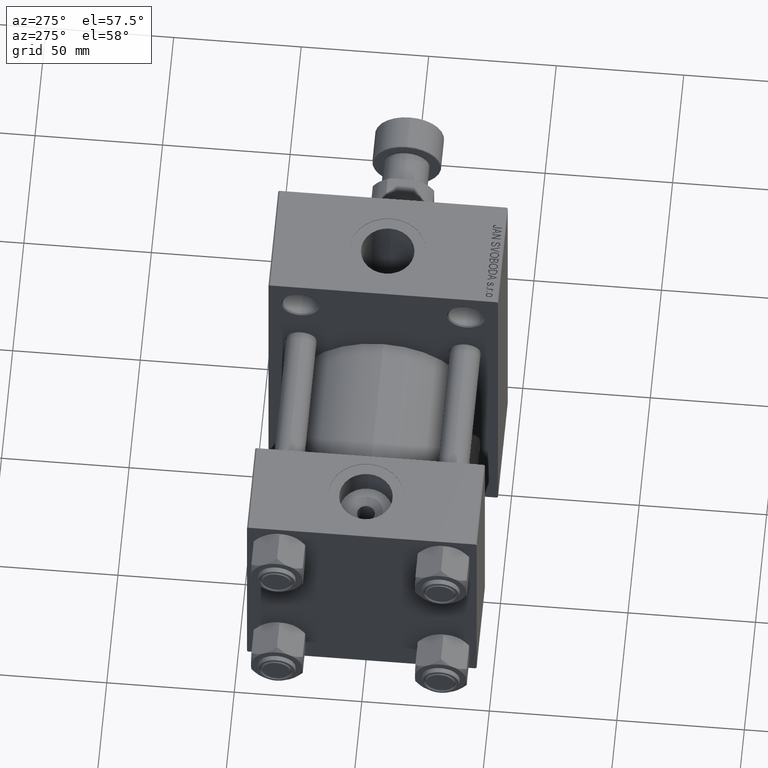
[diagram: clean part render]
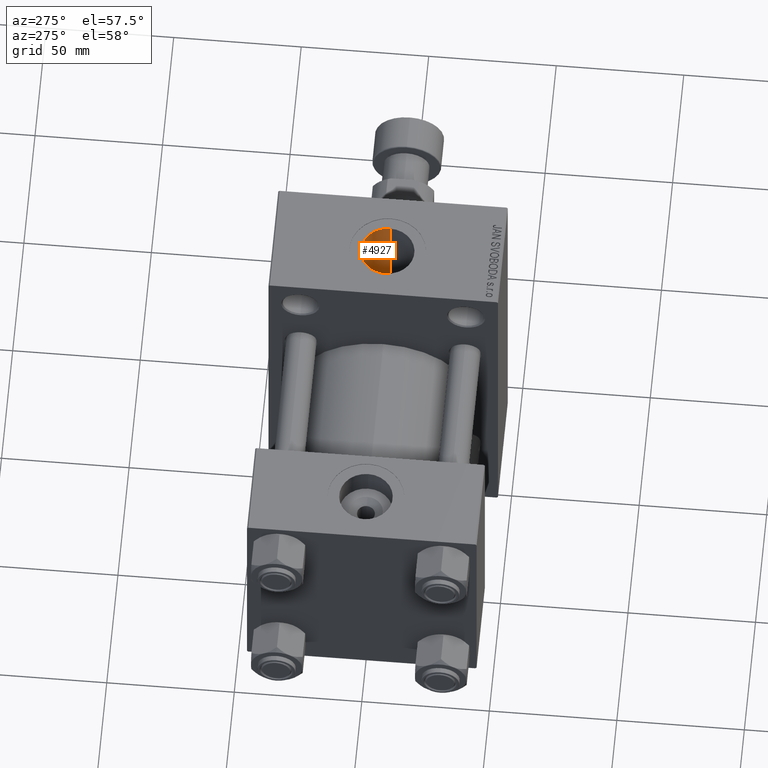
[diagram: same view with one face highlighted and labeled with its STEP entity id]
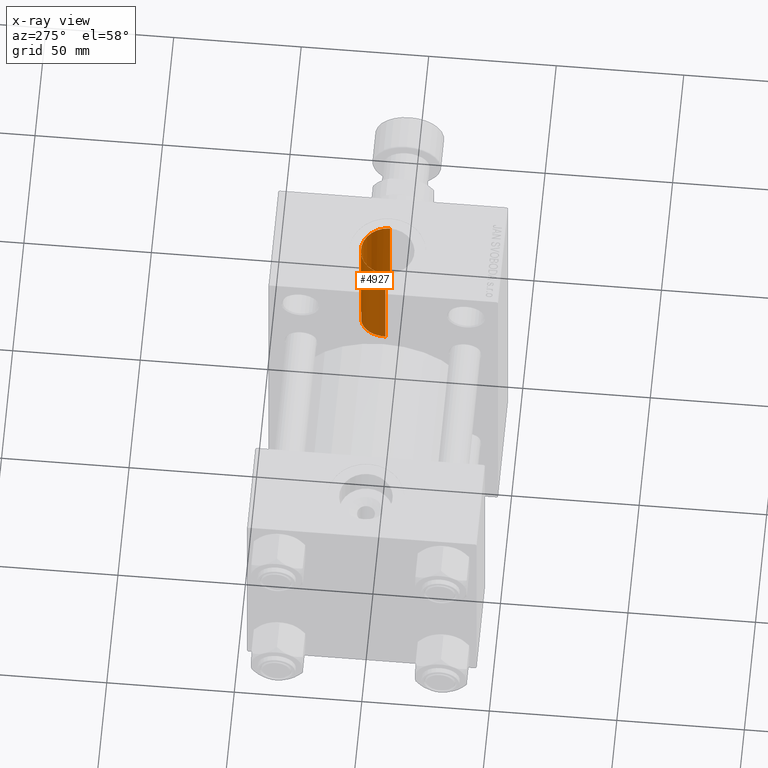
[diagram: x-ray of the same camera — body ghosted, the highlighted face saturated]
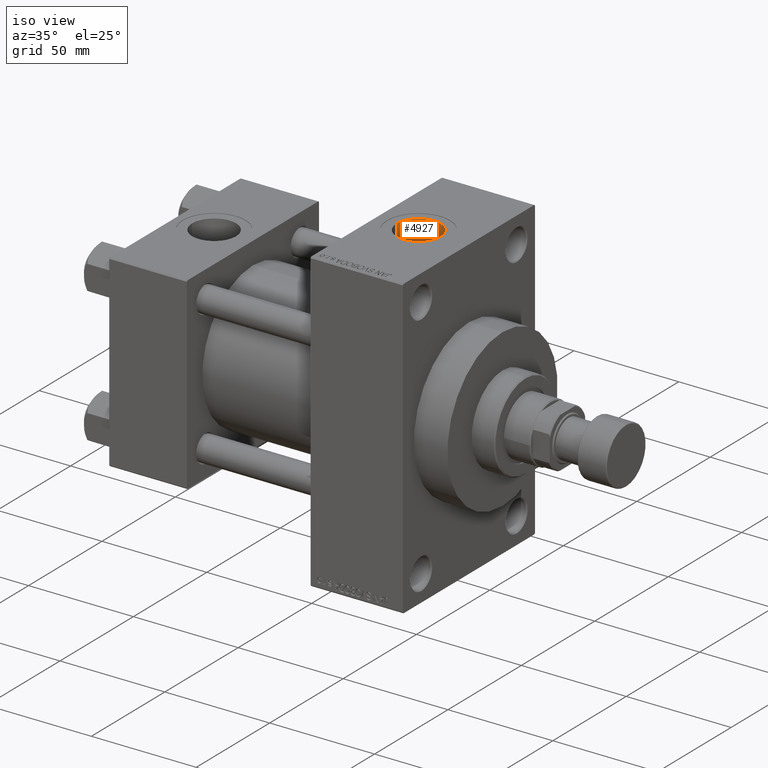
[diagram: same view with one face highlighted and labeled with its STEP entity id]
A machine part, auxiliary view. The second image highlights one B-rep face of the part: STEP entity #4927.
The next image is the same camera in x-ray: the body ghosted, the highlighted face saturated — about 2% of this face is hidden behind the body in this view.
A second angle (iso view) of the same face is appended — the face is thin or edge-on in the first view.
In plain terms, the highlighted cylindrical surface (edge-blend (fillet) strip) has radius 10.48 mm, axis along (0, 0, -1).
Its self-contained STEP definition (entity closure, byte-faithful):
#401 = VERTEX_POINT ( 'NONE', #13849 ) ;
#2910 = CARTESIAN_POINT ( 'NONE',  ( 126.3830360161806396, 1.648097371455658156, 29.96570276014226053 ) ) ;
#3214 = CARTESIAN_POINT ( 'NONE',  ( 108.2191150461718649, 7.025825097695104660, 23.99341311413245847 ) ) ;
#3386 = CARTESIAN_POINT ( 'NONE',  ( 123.4361280113390649, 7.429595108124756209, 29.07242469717888511 ) ) ;
#3452 = CARTESIAN_POINT ( 'NONE',  ( 112.7400000000000375, 9.960060240781688279, 22.93026820601974691 ) ) ;
#3691 = CARTESIAN_POINT ( 'NONE',  ( 105.7407124806769758, 2.210995156578869913, 24.90815361058044175 ) ) ;
#4798 = VERTEX_POINT ( 'NONE', #33761 ) ;
#4927 = ADVANCED_FACE ( 'NONE', ( #29111 ), #29355, .F. ) ;
#5331 = CARTESIAN_POINT ( 'NONE',  ( 120.7931686517055709, 9.355930520045832921, 28.50576369173083435 ) ) ;
#6048 = CARTESIAN_POINT ( 'NONE',  ( 114.3405906774045064, 10.38092379675461530, 28.14678245432905968 ) ) ;
#6932 = B_SPLINE_CURVE_WITH_KNOTS ( 'NONE', 3,
 ( #39085, #20043, #6048, #20756, #31847, #46552, #9915, #30887, #41985, #23650, #38374, #5331, #43180, #13988, #3386, #13755, #14709, #32329, #6998, #28465, #39790, #10155, #17856, #2910, #28694, #24835 ),
 .UNSPECIFIED., .F., .F.,
 ( 4, 2, 2, 2, 2, 2, 2, 2, 2, 2, 2, 2, 4 ),
 ( 0.000000000000000000, 0.002478973229448047568, 0.003718459844172071569, 0.004957946458896095136, 0.006197433073620119137, 0.007436919688344143138, 0.009915892917792155578, 0.01239486614724016715, 0.01363435276196417467, 0.01487383937668817872, 0.01611332599141218624, 0.01735281260613619203, 0.01983178583558418279 ),
 .UNSPECIFIED. ) ;
#6998 = CARTESIAN_POINT ( 'NONE',  ( 125.1456671303457568, 5.133639323080404715, 29.55979794353439516 ) ) ;
#8239 = CARTESIAN_POINT ( 'NONE',  ( 112.7400000000000375, 9.960060240781688279, 93.79999999999999716 ) ) ;
#8368 = DIRECTION ( 'NONE',  ( -0.000000000000000000, -0.000000000000000000, -1.000000000000000000 ) ) ;
#9692 = LINE ( 'NONE', #32101, #47670 ) ;
#9845 = VERTEX_POINT ( 'NONE', #37049 ) ;
#9915 = CARTESIAN_POINT ( 'NONE',  ( 117.2444743077375335, 10.41402026144618809, 28.13455134504983235 ) ) ;
#10155 = CARTESIAN_POINT ( 'NONE',  ( 125.9683417730961565, 3.260593319422036895, 29.82480881445976095 ) ) ;
#10215 = CARTESIAN_POINT ( 'NONE',  ( 105.6081712893590492, 1.384942614456412535, 24.96313457725881335 ) ) ;
#10235 = VECTOR ( 'NONE', #22942, 1000.000000000000000 ) ;
#10449 = CARTESIAN_POINT ( 'NONE',  ( 108.4055094269453150, 7.226927296489289887, 23.93349527817645495 ) ) ;
#11318 = LINE ( 'NONE', #44820, #40297 ) ;
#12640 = AXIS2_PLACEMENT_3D ( 'NONE', #26693, #8368, #30070 ) ;
#12768 = ORIENTED_EDGE ( 'NONE', *, *, #41077, .F. ) ;
#13151 = ORIENTED_EDGE ( 'NONE', *, *, #39755, .F. ) ;
#13755 = CARTESIAN_POINT ( 'NONE',  ( 124.2306735501210966, 6.500194899328791465, 29.28905352826703634 ) ) ;
#13849 = CARTESIAN_POINT ( 'NONE',  ( 126.4800000000000040, 1.283429845506425883E-15, 70.79999999999998295 ) ) ;
#13988 = CARTESIAN_POINT ( 'NONE',  ( 122.8380018292597526, 7.984464829307555078, 28.92238598225677393 ) ) ;
#14048 = CARTESIAN_POINT ( 'NONE',  ( 105.8714792709155859, 2.746840284963962375, 24.85421337676989495 ) ) ;
#14170 = DIRECTION ( 'NONE',  ( -1.000000000000000000, 0.000000000000000000, 0.000000000000000000 ) ) ;
#14297 = CARTESIAN_POINT ( 'NONE',  ( 112.2204695759653816, 9.790014162604540715, 23.00412993180228938 ) ) ;
#14533 = CARTESIAN_POINT ( 'NONE',  ( 105.5308991753443308, 0.5526879277622510633, 24.99542504668380971 ) ) ;
#14709 = CARTESIAN_POINT ( 'NONE',  ( 124.4793501314061501, 6.172613663302648490, 29.36019312204047793 ) ) ;
#15161 = B_SPLINE_CURVE_WITH_KNOTS ( 'NONE', 3,
 ( #47087, #36722, #14533, #43238, #10215, #3691, #14048, #18159, #18393, #39852, #36000, #33115, #32624, #43952, #43474, #3214, #10449, #21528, #17680, #21767, #47330, #36245, #14297, #3452 ),
 .UNSPECIFIED., .F., .F.,
 ( 4, 2, 2, 2, 2, 2, 2, 2, 2, 2, 2, 4 ),
 ( 0.03315293716445245897, 0.03398143856659527340, 0.03480993996873808782, 0.03646694277302370973, 0.03729544417516652416, 0.03812394557730933858, 0.03978094838159496049, 0.04060944978373777492, 0.04143795118588058934, 0.04309495399016621819, 0.04475195679445184010, 0.04640895959873746895 ),
 .UNSPECIFIED. ) ;
#15702 = CARTESIAN_POINT ( 'NONE',  ( 126.4800000000000040, 3.673940397618731677E-15, 30.00000000000000000 ) ) ;
#16304 = EDGE_CURVE ( 'NONE', #17494, #28990, #6932, .T. ) ;
#17494 = VERTEX_POINT ( 'NONE', #30072 ) ;
#17680 = CARTESIAN_POINT ( 'NONE',  ( 109.3963603562479960, 8.155655190358237050, 23.63471280748279213 ) ) ;
#17856 = CARTESIAN_POINT ( 'NONE',  ( 126.0901672462784973, 2.862209008249553044, 29.86591119163861663 ) ) ;
#18159 = CARTESIAN_POINT ( 'NONE',  ( 106.1284384137638597, 3.529601645624528494, 24.75098332906153331 ) ) ;
#18393 = CARTESIAN_POINT ( 'NONE',  ( 106.2242790990456456, 3.787004330726787771, 24.71284667523637779 ) ) ;
#20043 = CARTESIAN_POINT ( 'NONE',  ( 113.5317014108506157, 10.21918985817146464, 28.20715556589739492 ) ) ;
#20756 = CARTESIAN_POINT ( 'NONE',  ( 115.5797722390586699, 10.47976684723567509, 28.11006442857998877 ) ) ;
#21528 = CARTESIAN_POINT ( 'NONE',  ( 108.9846989220167899, 7.804704455460337975, 23.75393200882464129 ) ) ;
#21767 = CARTESIAN_POINT ( 'NONE',  ( 110.2707649538851058, 8.791964167062989333, 23.40546361773867901 ) ) ;
#21923 = DIRECTION ( 'NONE',  ( 0.000000000000000000, 0.000000000000000000, -1.000000000000000000 ) ) ;
#22942 = DIRECTION ( 'NONE',  ( 0.000000000000000000, 0.000000000000000000, -1.000000000000000000 ) ) ;
#23650 = CARTESIAN_POINT ( 'NONE',  ( 119.2590511626587073, 9.968980903826006212, 28.29547369785728961 ) ) ;
#24835 = CARTESIAN_POINT ( 'NONE',  ( 126.4800000000000040, 3.673940397618731677E-15, 30.00000000000000000 ) ) ;
#26693 = CARTESIAN_POINT ( 'NONE',  ( 116.0000000000000000, 0.000000000000000000, 70.79999999999998295 ) ) ;
#27261 = CIRCLE ( 'NONE', #12640, 10.48000000000000398 ) ;
#28465 = CARTESIAN_POINT ( 'NONE',  ( 125.5177326829066686, 4.405705906582501719, 29.67702246902074137 ) ) ;
#28694 = CARTESIAN_POINT ( 'NONE',  ( 126.4800000000000040, 0.8289108953755107700, 30.00000000000000000 ) ) ;
#28990 = VERTEX_POINT ( 'NONE', #15702 ) ;
#29111 = FACE_OUTER_BOUND ( 'NONE', #37207, .T. ) ;
#29355 = CYLINDRICAL_SURFACE ( 'NONE', #40422, 10.48000000000000398 ) ;
#29593 = CARTESIAN_POINT ( 'NONE',  ( 116.0000000000000000, 0.000000000000000000, 93.79999999999999716 ) ) ;
#30070 = DIRECTION ( 'NONE',  ( 1.000000000000000000, 0.000000000000000000, 0.000000000000000000 ) ) ;
#30072 = CARTESIAN_POINT ( 'NONE',  ( 112.7400000000000375, 9.960060240781688279, 28.29836037653064906 ) ) ;
#30412 = LINE ( 'NONE', #8239, #10235 ) ;
#30690 = ORIENTED_EDGE ( 'NONE', *, *, #16304, .T. ) ;
#30887 = CARTESIAN_POINT ( 'NONE',  ( 118.0591099703893292, 10.28399729863219214, 28.18233838691856263 ) ) ;
#30943 = EDGE_CURVE ( 'NONE', #4798, #44977, #9692, .T. ) ;
#31553 = ORIENTED_EDGE ( 'NONE', *, *, #36666, .T. ) ;
#31847 = CARTESIAN_POINT ( 'NONE',  ( 116.0002282757462524, 10.48827684731156040, 28.10687390860658752 ) ) ;
#32101 = CARTESIAN_POINT ( 'NONE',  ( 105.5199999999999960, 0.000000000000000000, 93.79999999999999716 ) ) ;
#32329 = CARTESIAN_POINT ( 'NONE',  ( 124.9382592368621800, 5.487081182378862110, 29.49600040171356952 ) ) ;
#32624 = CARTESIAN_POINT ( 'NONE',  ( 107.2168952918916460, 5.742964677340216539, 24.33562597405336803 ) ) ;
#33115 = CARTESIAN_POINT ( 'NONE',  ( 106.9306559456026662, 5.280155339913241264, 24.44112276137721551 ) ) ;
#33233 = DIRECTION ( 'NONE',  ( 0.000000000000000000, 0.000000000000000000, -1.000000000000000000 ) ) ;
#33761 = CARTESIAN_POINT ( 'NONE',  ( 105.5199999999999960, 0.000000000000000000, 70.79999999999998295 ) ) ;
#36000 = CARTESIAN_POINT ( 'NONE',  ( 106.5534232013268792, 4.546234407114493337, 24.58442359052068937 ) ) ;
#36245 = CARTESIAN_POINT ( 'NONE',  ( 111.7145022253386060, 9.579591377203511726, 23.09339075464095359 ) ) ;
#36666 = EDGE_CURVE ( 'NONE', #44977, #9845, #15161, .T. ) ;
#36722 = CARTESIAN_POINT ( 'NONE',  ( 105.5199999999999960, 0.2761730040892634297, 25.00000000000000355 ) ) ;
#37049 = CARTESIAN_POINT ( 'NONE',  ( 112.7400000000000375, 9.960060240781688279, 22.93026820601974691 ) ) ;
#37207 = EDGE_LOOP ( 'NONE', ( #44756, #12768, #41100, #31553, #13151, #30690 ) ) ;
#38374 = CARTESIAN_POINT ( 'NONE',  ( 119.6536175153769932, 9.831116643405012567, 28.34390843602812637 ) ) ;
#38693 = CARTESIAN_POINT ( 'NONE',  ( 105.5199999999999960, 3.061579607129328475E-15, 25.00000000000000000 ) ) ;
#39085 = CARTESIAN_POINT ( 'NONE',  ( 112.7400000000000375, 9.960060240781688279, 28.29836037653064906 ) ) ;
#39755 = EDGE_CURVE ( 'NONE', #17494, #9845, #30412, .T. ) ;
#39790 = CARTESIAN_POINT ( 'NONE',  ( 125.6823871826148746, 4.031213830330557357, 29.73045584359392635 ) ) ;
#39852 = CARTESIAN_POINT ( 'NONE',  ( 106.4364837241043915, 4.294796546401080661, 24.62967549968345082 ) ) ;
#40297 = VECTOR ( 'NONE', #21923, 1000.000000000000000 ) ;
#40422 = AXIS2_PLACEMENT_3D ( 'NONE', #29593, #33233, #14170 ) ;
#41077 = EDGE_CURVE ( 'NONE', #4798, #401, #27261, .T. ) ;
#41100 = ORIENTED_EDGE ( 'NONE', *, *, #30943, .T. ) ;
#41985 = CARTESIAN_POINT ( 'NONE',  ( 118.4620306645708752, 10.19511646566078156, 28.21478357702915218 ) ) ;
#42473 = DIRECTION ( 'NONE',  ( 0.000000000000000000, 0.000000000000000000, -1.000000000000000000 ) ) ;
#43180 = CARTESIAN_POINT ( 'NONE',  ( 121.5055286267077577, 8.955395143035872252, 28.63663715154385514 ) ) ;
#43238 = CARTESIAN_POINT ( 'NONE',  ( 105.5748675089374018, 1.106412475567421172, 24.97704123077413740 ) ) ;
#43474 = CARTESIAN_POINT ( 'NONE',  ( 107.8651253838970661, 6.612730445768659315, 24.11053477674085244 ) ) ;
#43952 = CARTESIAN_POINT ( 'NONE',  ( 107.6967244621315132, 6.399965487557576438, 24.16798554837829016 ) ) ;
#43964 = EDGE_CURVE ( 'NONE', #401, #28990, #11318, .T. ) ;
#44756 = ORIENTED_EDGE ( 'NONE', *, *, #43964, .F. ) ;
#44820 = CARTESIAN_POINT ( 'NONE',  ( 126.4800000000000040, 1.283429845506426277E-15, 93.79999999999999716 ) ) ;
#44977 = VERTEX_POINT ( 'NONE', #38693 ) ;
#46552 = CARTESIAN_POINT ( 'NONE',  ( 116.8327597629122891, 10.45516439159308497, 28.11920784241487326 ) ) ;
#47087 = CARTESIAN_POINT ( 'NONE',  ( 105.5199999999999960, 3.061579607129328475E-15, 25.00000000000000000 ) ) ;
#47330 = CARTESIAN_POINT ( 'NONE',  ( 110.7334908428740761, 9.077331294423940378, 23.29539276492242550 ) ) ;
#47670 = VECTOR ( 'NONE', #42473, 1000.000000000000000 ) ;